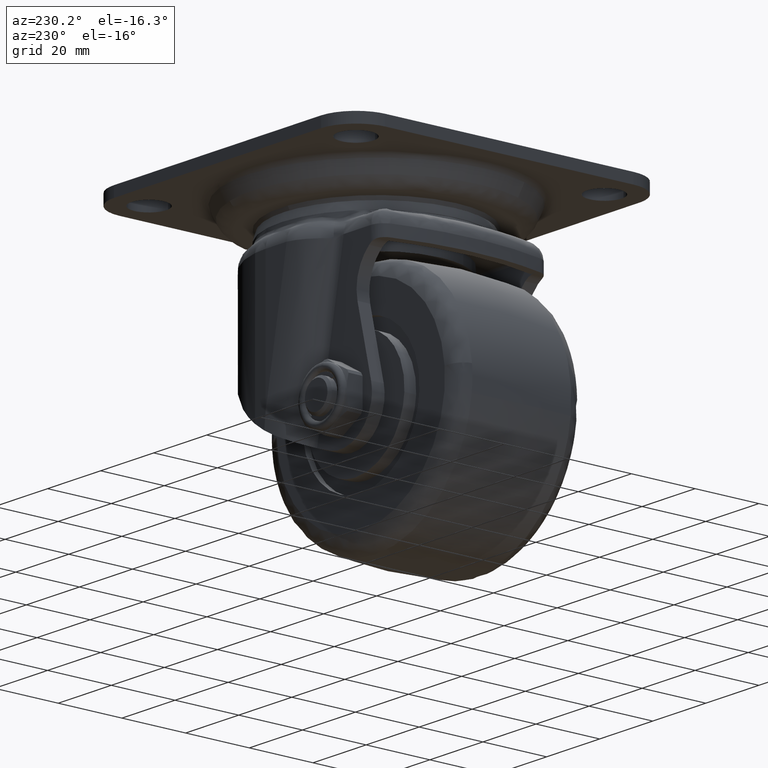
[diagram: clean part render]
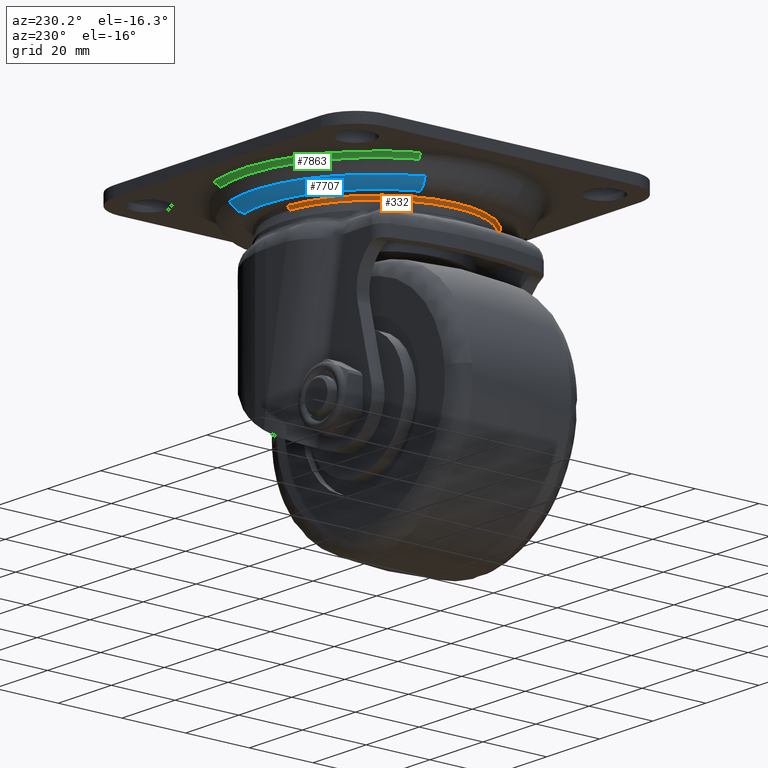
[diagram: same view with three faces highlighted in distinct colors, each labeled with its STEP entity id]
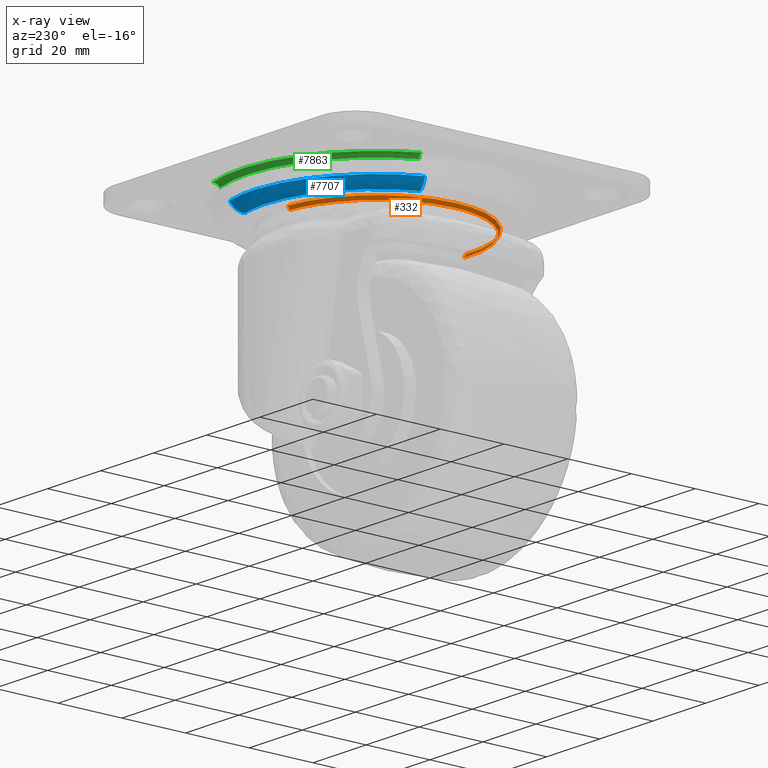
[diagram: x-ray of the same camera — body ghosted, the three highlighted faces saturated]
A machine part, auxiliary view with three faces highlighted in distinct colors.
The next image is the same camera in x-ray (body ghosted, the three faces saturated) — at least one of them is partly hidden behind the body in this view.
Their STEP definitions:

[orange] entity #332 — the highlighted face is a freeform B-spline surface patch.
#234=CARTESIAN_POINT('',(-2.302217957288326,29.252452712603151,-11.748877949999979));
#235=CARTESIAN_POINT('',(-31.554670669891486,26.950234755314824,-11.748877949999979));
#236=CARTESIAN_POINT('',(-29.252452712603151,-2.302217957288325,-11.748877949999979));
#237=CARTESIAN_POINT('',(-26.950234755314824,-31.554670669891486,-11.748877949999979));
#238=CARTESIAN_POINT('',(2.302217957288326,-29.252452712603151,-11.748877949999979));
#239=CARTESIAN_POINT('',(-2.352626867090771,29.892958641080369,-10.622526001249980));
#240=CARTESIAN_POINT('',(-32.245585508171153,27.540331773989603,-10.622526001249978));
#241=CARTESIAN_POINT('',(-29.892958641080369,-2.352626867090770,-10.622526001249980));
#242=CARTESIAN_POINT('',(-27.540331773989603,-32.245585508171153,-10.622526001249978));
#243=CARTESIAN_POINT('',(2.352626867090771,-29.892958641080369,-10.622526001249980));
#251=(BOUNDED_SURFACE()B_SPLINE_SURFACE(2,1,((#234,#239),(#235,#240),(#236,#241),(#237,#242),(#238,#243)),.UNSPECIFIED.,.F.,.F.,.U.)B_SPLINE_SURFACE_WITH_KNOTS((3,2,3),(2,2),(0.0,49.681426812900192,99.362853625800369),(0.0,1.0),.UNSPECIFIED.)GEOMETRIC_REPRESENTATION_ITEM()RATIONAL_B_SPLINE_SURFACE(((1.0,1.0),(0.707106781186548,0.707106781186548),(1.0,1.0),(0.707106781186548,0.707106781186548),(1.0,1.0)))REPRESENTATION_ITEM('')SURFACE());
#252=CARTESIAN_POINT('',(-29.969723200000001,9.685118E-016,-10.649997999999981));
#253=VERTEX_POINT('',#252);
#254=CARTESIAN_POINT('',(-2.351397381487089,29.877336545263891,-10.649997999999760));
#255=VERTEX_POINT('',#254);
#256=CARTESIAN_POINT('',(-29.969723200000001,9.685118E-016,-10.649997999999981));
#257=CARTESIAN_POINT('',(-29.969723200000008,27.703727163706063,-10.649997999999982));
#258=CARTESIAN_POINT('',(-2.351397381487089,29.877336545263883,-10.649997999999758));
#266=(BOUNDED_CURVE()B_SPLINE_CURVE(2,(#256,#257,#258),.UNSPECIFIED.,.F.,.U.)B_SPLINE_CURVE_WITH_KNOTS((3,3),(0.0,0.236331300632753),.UNSPECIFIED.)CURVE()GEOMETRIC_REPRESENTATION_ITEM()RATIONAL_B_SPLINE_CURVE((1.0,0.723120658605213,0.969723356171786))REPRESENTATION_ITEM(''));
#267=EDGE_CURVE('',#253,#255,#266,.T.);
#268=ORIENTED_EDGE('',*,*,#267,.T.);
#269=CARTESIAN_POINT('',(-2.303417455449586,29.267693781692660,-11.722075999998200));
#270=VERTEX_POINT('',#269);
#271=CARTESIAN_POINT('',(-2.303417455449586,29.267693781692660,-11.722075999998200));
#272=CARTESIAN_POINT('',(-2.351397381487089,29.877336545263891,-10.649997999999760));
#273=QUASI_UNIFORM_CURVE('',1,(#271,#272),.UNSPECIFIED.,.F.,.U.);
#274=EDGE_CURVE('',#270,#255,#273,.T.);
#275=ORIENTED_EDGE('',*,*,#274,.F.);
#276=CARTESIAN_POINT('',(-29.358195299999998,9.685118E-016,-11.722075999999980));
#277=VERTEX_POINT('',#276);
#278=CARTESIAN_POINT('',(-29.358195299999998,9.685118E-016,-11.722075999999980));
#279=CARTESIAN_POINT('',(-29.358195299999998,27.138436587546021,-11.722075999999976));
#280=CARTESIAN_POINT('',(-2.303417455449586,29.267693781692664,-11.722075999998198));
#288=(BOUNDED_CURVE()B_SPLINE_CURVE(2,(#278,#279,#280),.UNSPECIFIED.,.F.,.U.)B_SPLINE_CURVE_WITH_KNOTS((3,3),(0.0,0.236331300632650),.UNSPECIFIED.)CURVE()GEOMETRIC_REPRESENTATION_ITEM()RATIONAL_B_SPLINE_CURVE((1.0,0.723120658605334,0.969723356171570))REPRESENTATION_ITEM(''));
#289=EDGE_CURVE('',#277,#270,#288,.T.);
#290=ORIENTED_EDGE('',*,*,#289,.F.);
#291=CARTESIAN_POINT('',(2.303417455449586,-29.267693781692660,-11.722075999998200));
#292=VERTEX_POINT('',#291);
#293=CARTESIAN_POINT('',(2.303417455449586,-29.267693781692667,-11.722075999998200));
#294=CARTESIAN_POINT('',(1.153486634899141,-29.358195300000006,-11.722075999999984));
#295=CARTESIAN_POINT('',(0.0,-29.358195299999998,-11.722075999999980));
#296=CARTESIAN_POINT('',(-29.358195300000002,-29.358195300000002,-11.722075999999978));
#297=CARTESIAN_POINT('',(-29.358195299999998,9.685118E-016,-11.722075999999980));
#305=(BOUNDED_CURVE()B_SPLINE_CURVE(2,(#293,#294,#295,#296,#297),.UNSPECIFIED.,.F.,.U.)B_SPLINE_CURVE_WITH_KNOTS((3,2,3),(0.736331300632649,0.750000000000000,1.0),.UNSPECIFIED.)CURVE()GEOMETRIC_REPRESENTATION_ITEM()RATIONAL_B_SPLINE_CURVE((0.969723356171570,0.983986122581213,1.0,0.707106781186548,1.0))REPRESENTATION_ITEM(''));
#306=EDGE_CURVE('',#292,#277,#305,.T.);
#307=ORIENTED_EDGE('',*,*,#306,.F.);
#308=CARTESIAN_POINT('',(2.351397381487089,-29.877336545263891,-10.649997999999760));
#309=VERTEX_POINT('',#308);
#310=CARTESIAN_POINT('',(2.303417455449586,-29.267693781692660,-11.722075999998200));
#311=CARTESIAN_POINT('',(2.351397381487089,-29.877336545263891,-10.649997999999760));
#312=QUASI_UNIFORM_CURVE('',1,(#310,#311),.UNSPECIFIED.,.F.,.U.);
#313=EDGE_CURVE('',#292,#309,#312,.T.);
#314=ORIENTED_EDGE('',*,*,#313,.T.);
#315=CARTESIAN_POINT('',(2.351397381487089,-29.877336545263891,-10.649997999999760));
#316=CARTESIAN_POINT('',(1.177513631519497,-29.969723200000001,-10.649997999999977));
#317=CARTESIAN_POINT('',(0.0,-29.969723200000001,-10.649997999999981));
#318=CARTESIAN_POINT('',(-29.969723200000001,-29.969723200000001,-10.649997999999981));
#319=CARTESIAN_POINT('',(-29.969723200000001,9.685118E-016,-10.649997999999981));
#327=(BOUNDED_CURVE()B_SPLINE_CURVE(2,(#315,#316,#317,#318,#319),.UNSPECIFIED.,.F.,.U.)B_SPLINE_CURVE_WITH_KNOTS((3,2,3),(0.736331300632753,0.750000000000000,1.0),.UNSPECIFIED.)CURVE()GEOMETRIC_REPRESENTATION_ITEM()RATIONAL_B_SPLINE_CURVE((0.969723356171786,0.983986122581334,1.0,0.707106781186548,1.0))REPRESENTATION_ITEM(''));
#328=EDGE_CURVE('',#309,#253,#327,.T.);
#329=ORIENTED_EDGE('',*,*,#328,.T.);
#330=EDGE_LOOP('',(#268,#275,#290,#307,#314,#329));
#331=FACE_OUTER_BOUND('',#330,.T.);
#332=ADVANCED_FACE('',(#331),#251,.T.);

[blue] entity #7707 — the highlighted face is a freeform B-spline surface patch.
#6142=CARTESIAN_POINT('',(10.511391295603300,37.421543231515393,-7.978876765603880));
#6143=VERTEX_POINT('',#6142);
#6157=CARTESIAN_POINT('',(-35.957564738067447,14.761936963206900,-7.978876765589027));
#6158=VERTEX_POINT('',#6157);
#6159=CARTESIAN_POINT('',(-35.957564738067447,14.761936963206896,-7.978876765589027));
#6160=CARTESIAN_POINT('',(-26.060377648724703,38.869797971057281,-7.978876765594620));
#6161=CARTESIAN_POINT('',(0.000000107968950,38.869798399072138,-7.978876765601348));
#6162=CARTESIAN_POINT('',(5.355465743921297,38.869798487030145,-7.978876765602732));
#6163=CARTESIAN_POINT('',(10.511391295603296,37.421543231515393,-7.978876765603880));
#6171=(BOUNDED_CURVE()B_SPLINE_CURVE(2,(#6159,#6160,#6161,#6162,#6163),.UNSPECIFIED.,.F.,.U.)B_SPLINE_CURVE_WITH_KNOTS((3,2,3),(0.064479943447569,0.250000000000000,0.296082510805131),.UNSPECIFIED.)CURVE()GEOMETRIC_REPRESENTATION_ITEM()RATIONAL_B_SPLINE_CURVE((0.887882137082711,0.782649733927619,1.0,0.946010980317118,0.911925557297395))REPRESENTATION_ITEM(''));
#6172=EDGE_CURVE('',#6158,#6143,#6171,.T.);
#7587=CARTESIAN_POINT('',(9.434687951036604,33.588377897285717,-10.642517273370171));
#7588=VERTEX_POINT('',#7587);
#7604=CARTESIAN_POINT('',(10.511391295603296,37.421543231515400,-7.978876765603880));
#7605=CARTESIAN_POINT('',(10.188843489356817,36.273242657162534,-10.503542338625603));
#7606=CARTESIAN_POINT('',(9.434687951036604,33.588377897285724,-10.642517273370169));
#7614=(BOUNDED_CURVE()B_SPLINE_CURVE(2,(#7604,#7605,#7606),.UNSPECIFIED.,.F.,.U.)B_SPLINE_CURVE_WITH_KNOTS((3,3),(-1.650386320350888,-0.362842970780831),.UNSPECIFIED.)CURVE()GEOMETRIC_REPRESENTATION_ITEM()RATIONAL_B_SPLINE_CURVE((0.870811178558687,0.745890034677706,0.868270199252700))REPRESENTATION_ITEM(''));
#7615=EDGE_CURVE('',#6143,#7588,#7614,.T.);
#7622=CARTESIAN_POINT('',(-32.274357720331921,13.249841517739309,-10.642517273369560));
#7623=VERTEX_POINT('',#7622);
#7624=CARTESIAN_POINT('',(-35.957564738067447,14.761936963206892,-7.978876765589027));
#7625=CARTESIAN_POINT('',(-34.854187146734922,14.308958832049864,-10.503542338610369));
#7626=CARTESIAN_POINT('',(-32.274357720331913,13.249841517739313,-10.642517273369563));
#7634=(BOUNDED_CURVE()B_SPLINE_CURVE(2,(#7624,#7625,#7626),.UNSPECIFIED.,.F.,.U.)B_SPLINE_CURVE_WITH_KNOTS((3,3),(-1.650386320355310,-0.362842970787375),.UNSPECIFIED.)CURVE()GEOMETRIC_REPRESENTATION_ITEM()RATIONAL_B_SPLINE_CURVE((0.910046830030443,0.779497184145900,0.907391363241046))REPRESENTATION_ITEM(''));
#7635=EDGE_CURVE('',#6158,#7623,#7634,.T.);
#7670=CARTESIAN_POINT('',(-36.046201562490893,14.798325723799902,-7.761942183233840));
#7671=CARTESIAN_POINT('',(-22.868415319313208,46.897169061533248,-7.761942183233835));
#7672=CARTESIAN_POINT('',(10.537302292401735,37.513788821044784,-7.761942183233837));
#7673=CARTESIAN_POINT('',(-34.945719629990087,14.346536370570250,-10.652225639428472));
#7674=CARTESIAN_POINT('',(-22.170248056385390,45.465409680501637,-10.652225639428472));
#7675=CARTESIAN_POINT('',(10.215600967784109,36.368501799730211,-10.652225639428471));
#7676=CARTESIAN_POINT('',(-32.054369093257932,13.159527887857612,-10.648289103946974));
#7677=CARTESIAN_POINT('',(-20.335918722320006,41.703677540647469,-10.648289103946977));
#7678=CARTESIAN_POINT('',(9.370379188007224,33.359432640125526,-10.648289103946979));
#7686=(BOUNDED_SURFACE()B_SPLINE_SURFACE(2,2,((#7670,#7673,#7676),(#7671,#7674,#7677),(#7672,#7675,#7678)),.UNSPECIFIED.,.F.,.F.,.U.)B_SPLINE_SURFACE_WITH_KNOTS((3,3),(3,3),(0.0,59.330367336652422),(0.0,5.672199532567110),.UNSPECIFIED.)GEOMETRIC_REPRESENTATION_ITEM()RATIONAL_B_SPLINE_SURFACE(((0.923733591186990,0.765943052741755,0.920812864480969),(0.674822710726032,0.559550688688047,0.672689008182516),(0.883907850313236,0.732920274493161,0.881113047473216)))REPRESENTATION_ITEM('')SURFACE());
#7687=CARTESIAN_POINT('',(-32.274357720331921,13.249841517739315,-10.642517273369563));
#7688=CARTESIAN_POINT('',(-23.390959952832425,34.888285351722949,-10.642517281741199));
#7689=CARTESIAN_POINT('',(0.0,34.888285351722963,-10.642517281741201));
#7690=CARTESIAN_POINT('',(4.806894334369090,34.888285351722956,-10.642517281741195));
#7691=CARTESIAN_POINT('',(9.434687951036604,33.588377897285724,-10.642517273370169));
#7699=(BOUNDED_CURVE()B_SPLINE_CURVE(2,(#7687,#7688,#7689,#7690,#7691),.UNSPECIFIED.,.F.,.U.)B_SPLINE_CURVE_WITH_KNOTS((3,2,3),(0.064479943435465,0.250000000000000,0.296082510798616),.UNSPECIFIED.)CURVE()GEOMETRIC_REPRESENTATION_ITEM()RATIONAL_B_SPLINE_CURVE((0.887882137096441,0.782649733913439,1.0,0.946010980324751,0.911925557307032))REPRESENTATION_ITEM(''));
#7700=EDGE_CURVE('',#7623,#7588,#7699,.T.);
#7701=ORIENTED_EDGE('',*,*,#7700,.F.);
#7702=ORIENTED_EDGE('',*,*,#7635,.F.);
#7703=ORIENTED_EDGE('',*,*,#6172,.T.);
#7704=ORIENTED_EDGE('',*,*,#7615,.T.);
#7705=EDGE_LOOP('',(#7701,#7702,#7703,#7704));
#7706=FACE_OUTER_BOUND('',#7705,.T.);
#7707=ADVANCED_FACE('',(#7706),#7686,.T.);

[green] entity #7863 — the highlighted face is a freeform B-spline surface patch.
#6066=CARTESIAN_POINT('',(-36.723537610251007,17.280785079270672,-4.345675017584110));
#6067=VERTEX_POINT('',#6066);
#6081=CARTESIAN_POINT('',(12.924949978311290,38.473229856951519,-4.345675017578616));
#6082=VERTEX_POINT('',#6081);
#6083=CARTESIAN_POINT('',(-36.723537610251007,17.280785079270665,-4.345675017584110));
#6084=CARTESIAN_POINT('',(-25.756817915541273,40.586250710279998,-4.345675039742930));
#6085=CARTESIAN_POINT('',(0.0,40.586250710279998,-4.345675039742931));
#6086=CARTESIAN_POINT('',(6.635197403420266,40.586250710279998,-4.345675039742932));
#6087=CARTESIAN_POINT('',(12.924949978311286,38.473229856951519,-4.345675017578616));
#6095=(BOUNDED_CURVE()B_SPLINE_CURVE(2,(#6083,#6084,#6085,#6086,#6087),.UNSPECIFIED.,.F.,.U.)B_SPLINE_CURVE_WITH_KNOTS((3,2,3),(0.072331535364439,0.250000000000000,0.304134442290552),.UNSPECIFIED.)CURVE()GEOMETRIC_REPRESENTATION_ITEM()RATIONAL_B_SPLINE_CURVE((0.879552628111520,0.791848446044986,1.0,0.936577555795397,0.900621820756552))REPRESENTATION_ITEM(''));
#6096=EDGE_CURVE('',#6067,#6082,#6095,.T.);
#7744=CARTESIAN_POINT('',(13.500830319549250,40.187431983586229,-3.200000500000001));
#7745=VERTEX_POINT('',#7744);
#7746=CARTESIAN_POINT('',(12.924949978311288,38.473229856951505,-4.345675017578617));
#7747=CARTESIAN_POINT('',(13.097316258526769,38.986306312713488,-3.200001006087740));
#7748=CARTESIAN_POINT('',(13.500830319549259,40.187431983586229,-3.200000500000000));
#7756=(BOUNDED_CURVE()B_SPLINE_CURVE(2,(#7746,#7747,#7748),.UNSPECIFIED.,.F.,.U.)B_SPLINE_CURVE_WITH_KNOTS((3,3),(-1.661306499124303,-0.352191801106864),.UNSPECIFIED.)CURVE()GEOMETRIC_REPRESENTATION_ITEM()RATIONAL_B_SPLINE_CURVE((0.868483046082217,0.732466663605270,0.865706738924398))REPRESENTATION_ITEM(''));
#7757=EDGE_CURVE('',#6082,#7745,#7756,.T.);
#7791=CARTESIAN_POINT('',(-38.359780958461940,18.050742754180071,-3.200000500000001));
#7792=VERTEX_POINT('',#7791);
#7806=CARTESIAN_POINT('',(-36.723537610251007,17.280785079270672,-4.345675017584110));
#7807=CARTESIAN_POINT('',(-37.213280288201595,17.511240490367644,-3.200001000018472));
#7808=CARTESIAN_POINT('',(-38.359780958461940,18.050742754180074,-3.200000500000001));
#7816=(BOUNDED_CURVE()B_SPLINE_CURVE(2,(#7806,#7807,#7808),.UNSPECIFIED.,.F.,.U.)B_SPLINE_CURVE_WITH_KNOTS((3,3),(-1.661306499131747,-0.352191795257894),.UNSPECIFIED.)CURVE()GEOMETRIC_REPRESENTATION_ITEM()RATIONAL_B_SPLINE_CURVE((0.907613800193847,0.765469003126308,0.904712403762249))REPRESENTATION_ITEM(''));
#7817=EDGE_CURVE('',#6067,#7792,#7816,.T.);
#7826=CARTESIAN_POINT('',(-36.684916913151838,17.262611558568473,-4.442584570169335));
#7827=CARTESIAN_POINT('',(-21.312704585647353,49.930225615256177,-4.442584570169336));
#7828=CARTESIAN_POINT('',(12.911357317647132,38.432769077480174,-4.442584570169334));
#7829=CARTESIAN_POINT('',(-37.171869670530036,17.491754132828465,-3.127358180975565));
#7830=CARTESIAN_POINT('',(-21.595607782340881,50.592995578656222,-3.127358180975565));
#7831=CARTESIAN_POINT('',(13.082741678751390,38.942922689665366,-3.127358180975566));
#7832=CARTESIAN_POINT('',(-38.455881050419947,18.095964024874718,-3.202823038724262));
#7833=CARTESIAN_POINT('',(-22.341575267806082,52.340606948261808,-3.202823038724262));
#7834=CARTESIAN_POINT('',(13.534653012363835,40.288110767179440,-3.202823038724263));
#7842=(BOUNDED_SURFACE()B_SPLINE_SURFACE(2,2,((#7826,#7829,#7832),(#7827,#7830,#7833),(#7828,#7831,#7834)),.UNSPECIFIED.,.F.,.F.,.U.)B_SPLINE_SURFACE_WITH_KNOTS((3,3),(3,3),(0.0,64.713173803650292),(0.0,2.552753738511371),.UNSPECIFIED.)GEOMETRIC_REPRESENTATION_ITEM()RATIONAL_B_SPLINE_SURFACE(((0.922516218417614,0.750711565235580,0.919324863354185),(0.673933373367261,0.548423504632633,0.671601966460184),(0.882742963209557,0.718345475539108,0.879689199851144)))REPRESENTATION_ITEM('')SURFACE());
#7843=ORIENTED_EDGE('',*,*,#6096,.F.);
#7844=ORIENTED_EDGE('',*,*,#7817,.T.);
#7845=CARTESIAN_POINT('',(-38.359780958461940,18.050742754180067,-3.200000500000001));
#7846=CARTESIAN_POINT('',(-26.904431271662581,42.394599999999990,-3.200000000000000));
#7847=CARTESIAN_POINT('',(0.0,42.394599999999997,-3.200000000000000));
#7848=CARTESIAN_POINT('',(6.930833346644811,42.394599999999997,-3.200000000000000));
#7849=CARTESIAN_POINT('',(13.500830319549253,40.187431983586229,-3.200000500000001));
#7857=(BOUNDED_CURVE()B_SPLINE_CURVE(2,(#7845,#7846,#7847,#7848,#7849),.UNSPECIFIED.,.F.,.U.)B_SPLINE_CURVE_WITH_KNOTS((3,2,3),(0.072331535363538,0.250000000000000,0.304134442290382),.UNSPECIFIED.)CURVE()GEOMETRIC_REPRESENTATION_ITEM()RATIONAL_B_SPLINE_CURVE((0.879552628112409,0.791848446043931,1.0,0.936577555795596,0.900621820756779))REPRESENTATION_ITEM(''));
#7858=EDGE_CURVE('',#7792,#7745,#7857,.T.);
#7859=ORIENTED_EDGE('',*,*,#7858,.T.);
#7860=ORIENTED_EDGE('',*,*,#7757,.F.);
#7861=EDGE_LOOP('',(#7843,#7844,#7859,#7860));
#7862=FACE_OUTER_BOUND('',#7861,.T.);
#7863=ADVANCED_FACE('',(#7862),#7842,.F.);